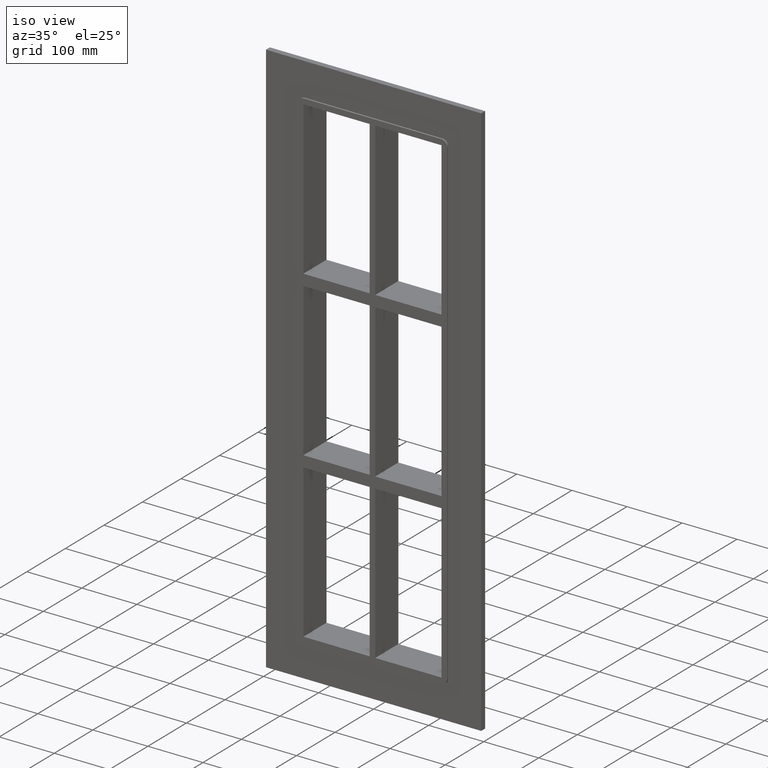
[diagram: clean part render]
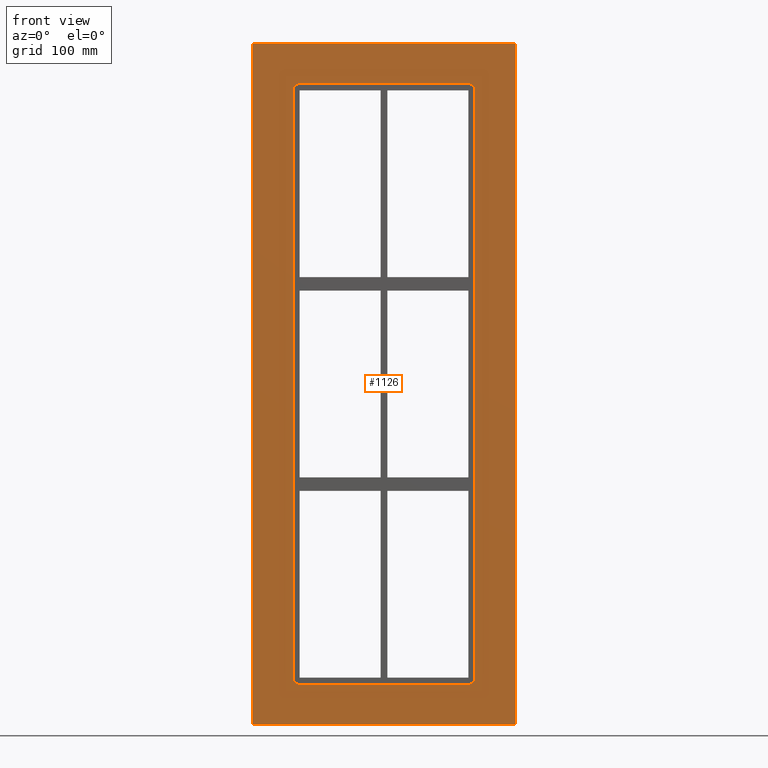
[diagram: tour spotlight — one face highlighted and labeled with its STEP entity id]
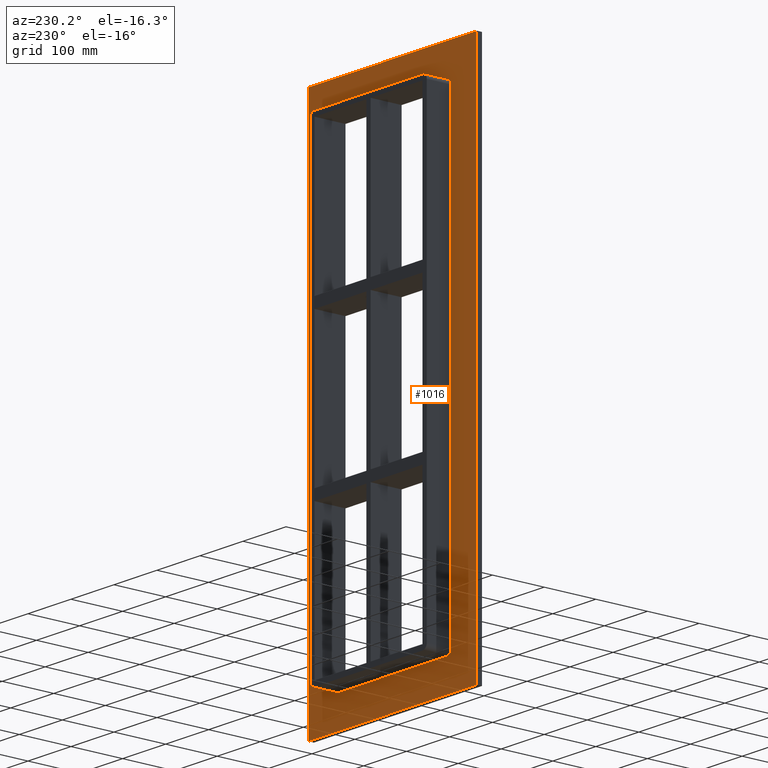
[diagram: tour spotlight — one face highlighted and labeled with its STEP entity id]
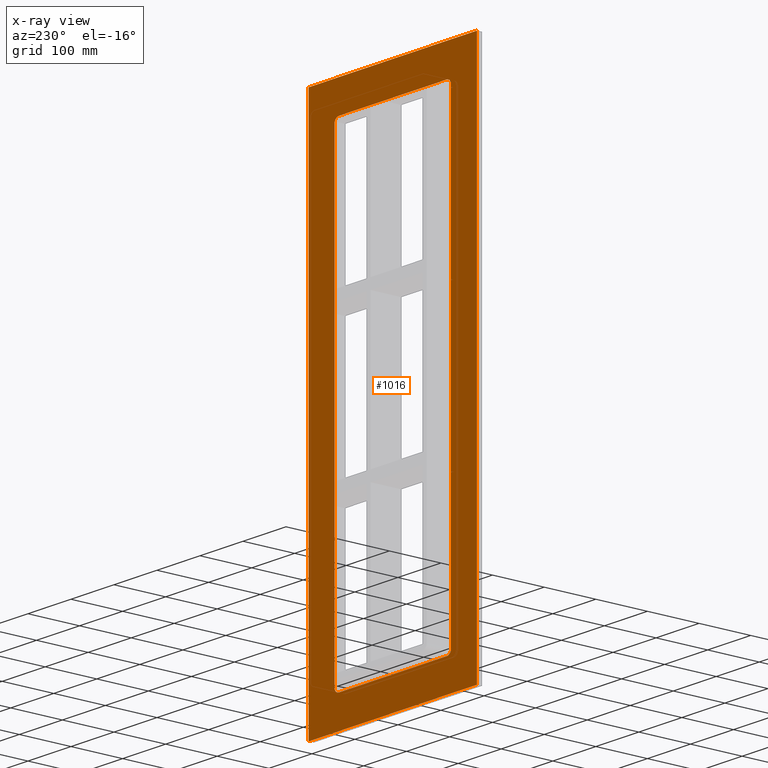
[diagram: x-ray of the same camera — body ghosted, this tour face saturated]
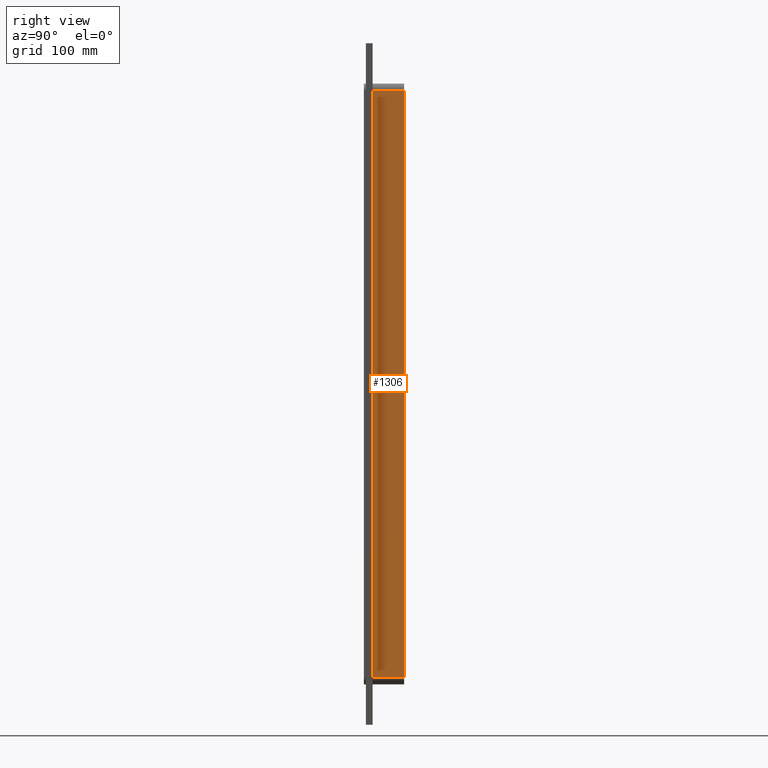
[diagram: tour spotlight — one face highlighted and labeled with its STEP entity id]
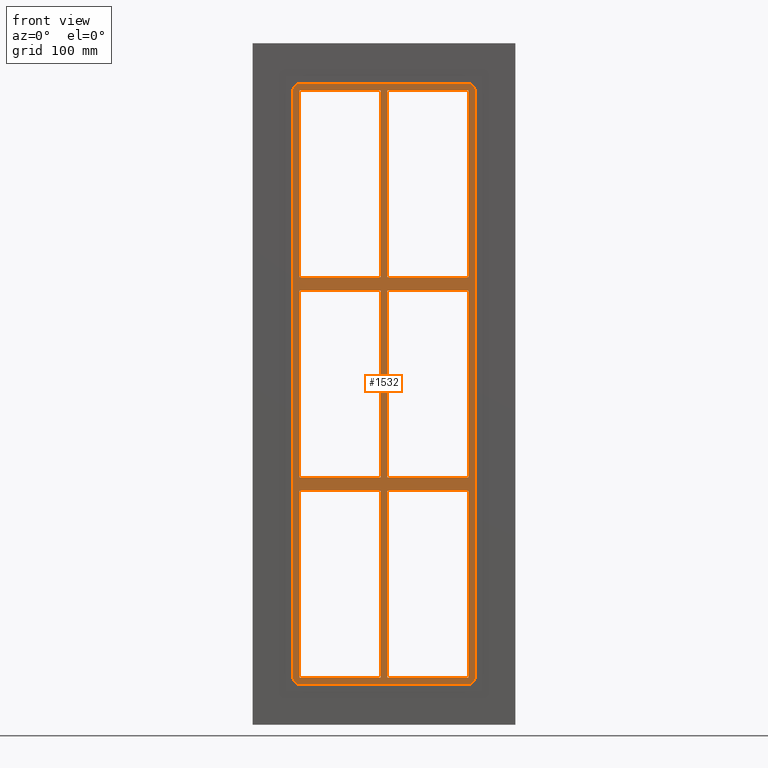
[diagram: tour spotlight — one face highlighted and labeled with its STEP entity id]
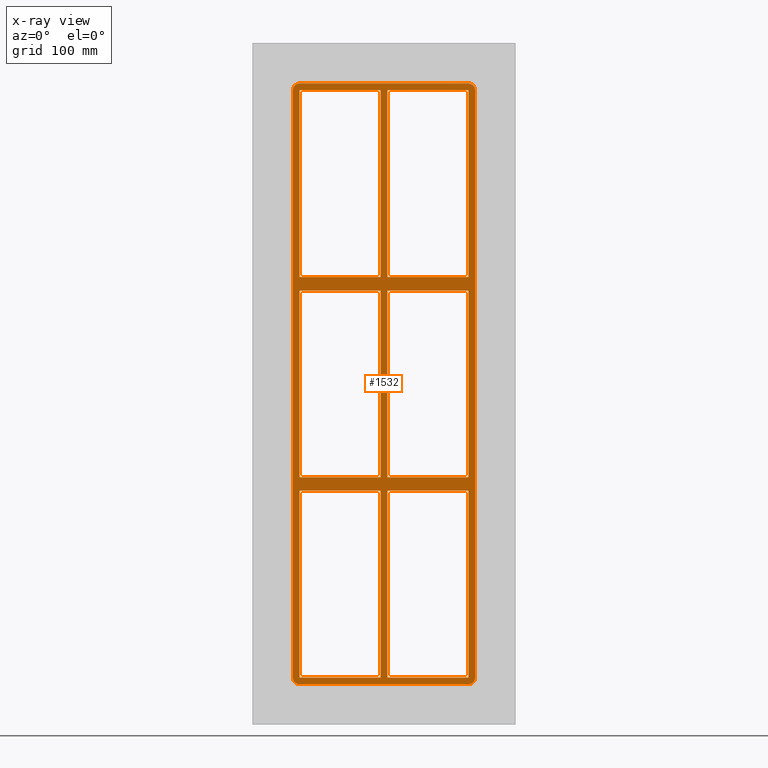
[diagram: x-ray of the same camera — body ghosted, this tour face saturated]
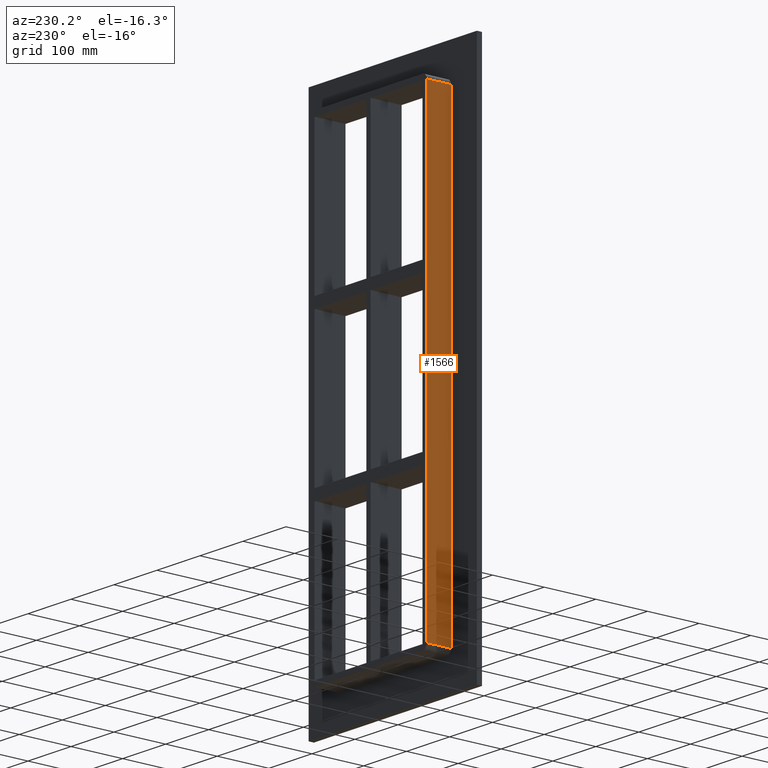
[diagram: tour spotlight — one face highlighted and labeled with its STEP entity id]
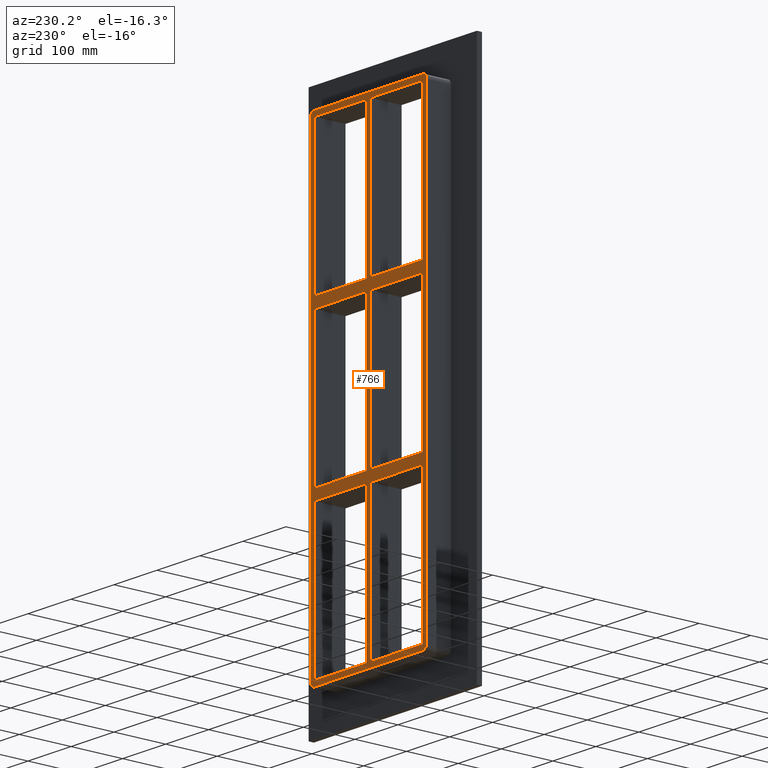
[diagram: tour spotlight — one face highlighted and labeled with its STEP entity id]
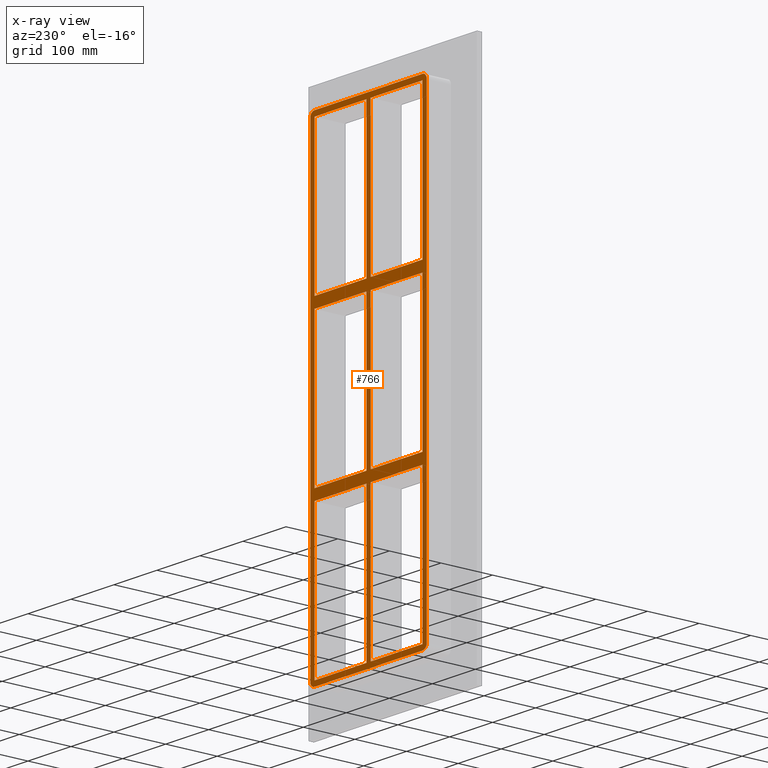
[diagram: x-ray of the same camera — body ghosted, this tour face saturated]
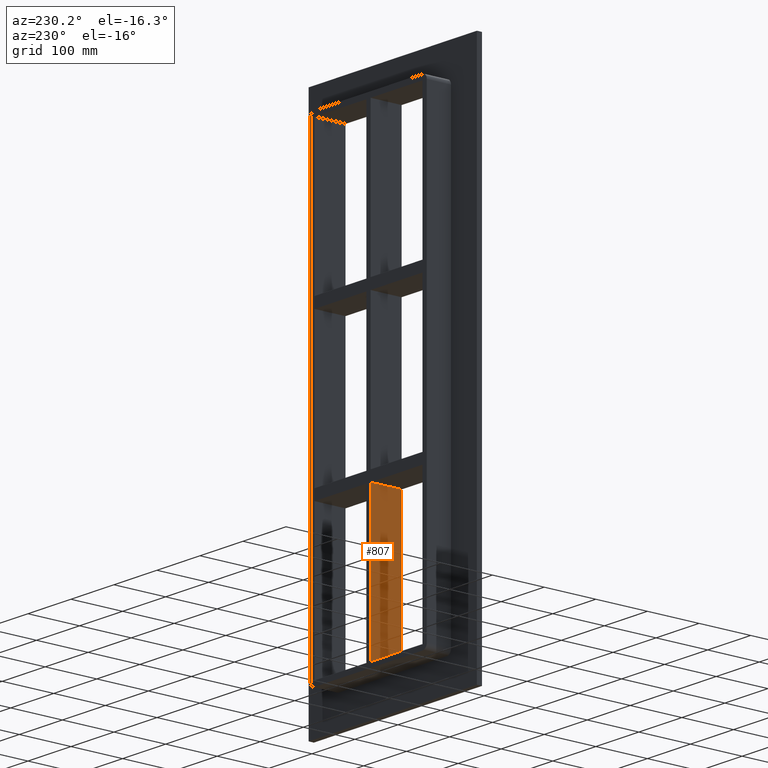
[diagram: tour spotlight — one face highlighted and labeled with its STEP entity id]
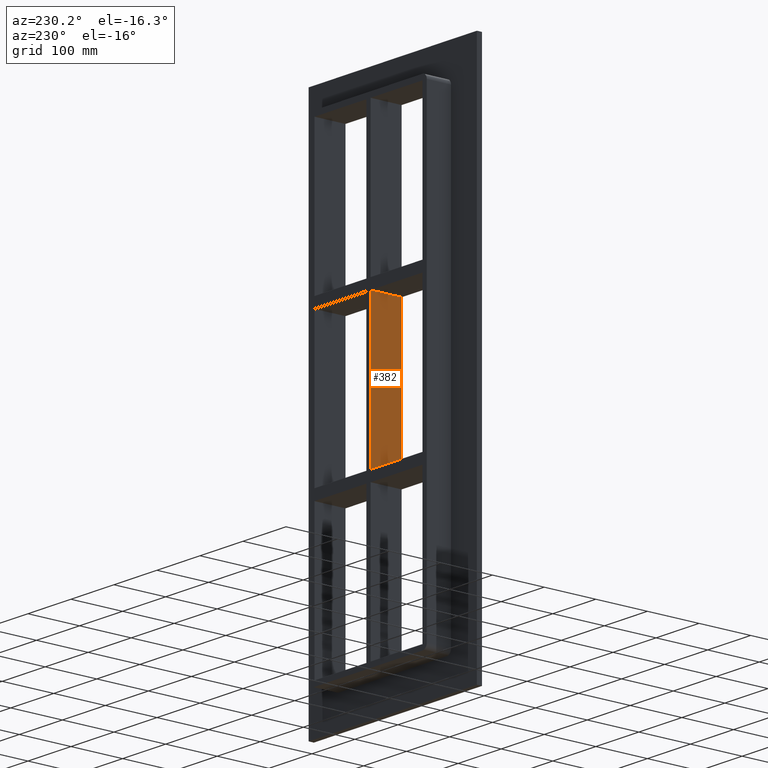
[diagram: tour spotlight — one face highlighted and labeled with its STEP entity id]
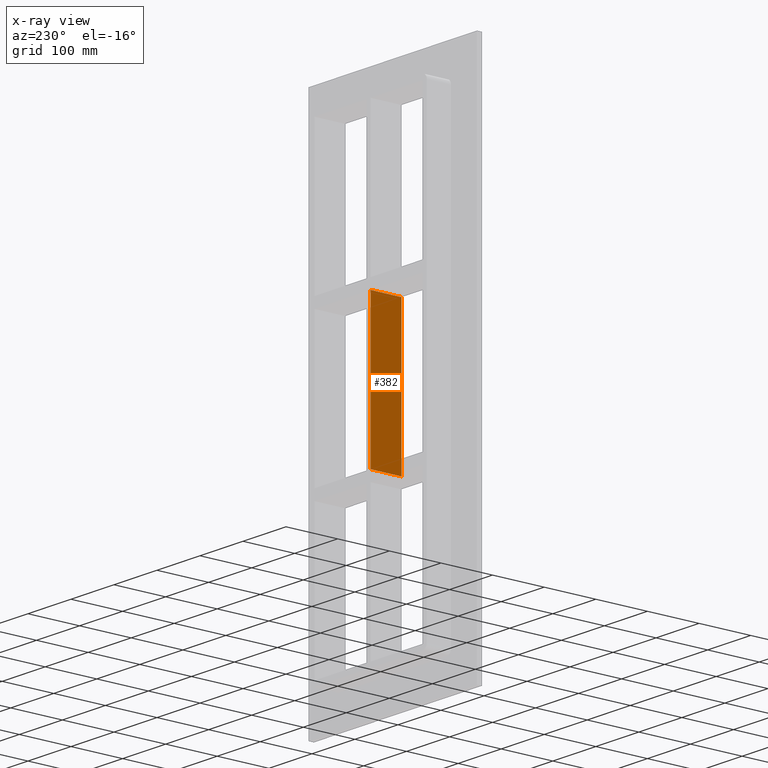
[diagram: x-ray of the same camera — body ghosted, this tour face saturated]
A machine part: a face-by-face anatomy tour. The part has 48 B-rep faces; the first image is the clean iso view, then the 8 largest visible faces are spotlighted one at a time (largest first), each with its STEP entity span.

Face 1 — front view, entity #1126. In plain terms, the highlighted planar face has unit normal (0, 1, 0).
Definition (entity closure, byte-faithful):
#1017=CARTESIAN_POINT('',(1.213738E-014,0.0,0.0));
#1018=DIRECTION('',(0.0,1.0,0.0));
#1019=DIRECTION('',(0.0,0.0,1.0));
#1020=AXIS2_PLACEMENT_3D('',#1017,#1018,#1019);
#1021=PLANE('',#1020);
#1022=CARTESIAN_POINT('',(-195.49999999999997,0.0,507.0));
#1023=VERTEX_POINT('',#1022);
#1024=CARTESIAN_POINT('',(195.5,0.0,507.0));
#1025=VERTEX_POINT('',#1024);
#1026=CARTESIAN_POINT('',(-195.49999999999997,0.0,507.0));
#1027=DIRECTION('',(1.0,0.0,0.0));
#1028=VECTOR('',#1027,390.99999999999994);
#1029=LINE('',#1026,#1028);
#1030=EDGE_CURVE('',#1023,#1025,#1029,.T.);
#1031=ORIENTED_EDGE('',*,*,#1030,.F.);
#1032=CARTESIAN_POINT('',(-195.49999999999997,0.0,-507.0));
#1033=VERTEX_POINT('',#1032);
#1034=CARTESIAN_POINT('',(-195.49999999999997,0.0,-507.0));
#1035=DIRECTION('',(0.0,0.0,1.0));
#1036=VECTOR('',#1035,1014.0);
#1037=LINE('',#1034,#1036);
#1038=EDGE_CURVE('',#1033,#1023,#1037,.T.);
#1039=ORIENTED_EDGE('',*,*,#1038,.F.);
#1040=CARTESIAN_POINT('',(195.5,0.0,-507.0));
#1041=VERTEX_POINT('',#1040);
#1042=CARTESIAN_POINT('',(195.5,0.0,-507.0));
#1043=DIRECTION('',(-1.0,0.0,0.0));
#1044=VECTOR('',#1043,390.99999999999994);
#1045=LINE('',#1042,#1044);
#1046=EDGE_CURVE('',#1041,#1033,#1045,.T.);
#1047=ORIENTED_EDGE('',*,*,#1046,.F.);
#1048=CARTESIAN_POINT('',(195.5,0.0,507.0));
#1049=DIRECTION('',(0.0,0.0,-1.0));
#1050=VECTOR('',#1049,1014.0);
#1051=LINE('',#1048,#1050);
#1052=EDGE_CURVE('',#1025,#1041,#1051,.T.);
#1053=ORIENTED_EDGE('',*,*,#1052,.F.);
#1054=EDGE_LOOP('',(#1031,#1039,#1047,#1053));
#1055=FACE_OUTER_BOUND('',#1054,.T.);
#1056=CARTESIAN_POINT('',(-135.5,0.0,-437.0));
#1057=VERTEX_POINT('',#1056);
#1058=CARTESIAN_POINT('',(-125.5,0.0,-447.0));
#1059=VERTEX_POINT('',#1058);
#1060=CARTESIAN_POINT('',(-125.5,0.0,-437.0));
#1061=DIRECTION('',(0.0,-1.0,0.0));
#1062=DIRECTION('',(-0.707106781186547,0.0,-0.707106781186547));
#1063=AXIS2_PLACEMENT_3D('',#1060,#1061,#1062);
#1064=CIRCLE('',#1063,9.999999999999998);
#1065=EDGE_CURVE('',#1057,#1059,#1064,.T.);
#1066=ORIENTED_EDGE('',*,*,#1065,.F.);
#1067=CARTESIAN_POINT('',(-135.5,0.0,437.0));
#1068=VERTEX_POINT('',#1067);
#1069=CARTESIAN_POINT('',(-135.5,0.0,437.00000000000011));
#1070=DIRECTION('',(0.0,0.0,-1.0));
#1071=VECTOR('',#1070,874.00000000000011);
#1072=LINE('',#1069,#1071);
#1073=EDGE_CURVE('',#1068,#1057,#1072,.T.);
#1074=ORIENTED_EDGE('',*,*,#1073,.F.);
#1075=CARTESIAN_POINT('',(-125.5,0.0,447.0));
#1076=VERTEX_POINT('',#1075);
#1077=CARTESIAN_POINT('',(-125.5,0.0,437.0));
#1078=DIRECTION('',(0.0,-1.0,0.0));
#1079=DIRECTION('',(-0.707106781186547,0.0,0.707106781186547));
#1080=AXIS2_PLACEMENT_3D('',#1077,#1078,#1079);
#1081=CIRCLE('',#1080,9.999999999999998);
#1082=EDGE_CURVE('',#1076,#1068,#1081,.T.);
#1083=ORIENTED_EDGE('',*,*,#1082,.F.);
#1084=CARTESIAN_POINT('',(125.5,0.0,447.0));
#1085=VERTEX_POINT('',#1084);
#1086=CARTESIAN_POINT('',(125.5,0.0,447.0));
#1087=DIRECTION('',(-1.0,0.0,0.0));
#1088=VECTOR('',#1087,251.0);
#1089=LINE('',#1086,#1088);
#1090=EDGE_CURVE('',#1085,#1076,#1089,.T.);
#1091=ORIENTED_EDGE('',*,*,#1090,.F.);
#1092=CARTESIAN_POINT('',(135.5,0.0,437.0));
#1093=VERTEX_POINT('',#1092);
#1094=CARTESIAN_POINT('',(125.5,0.0,437.0));
#1095=DIRECTION('',(0.0,-1.0,0.0));
#1096=DIRECTION('',(0.707106781186547,0.0,0.707106781186547));
#1097=AXIS2_PLACEMENT_3D('',#1094,#1095,#1096);
#1098=CIRCLE('',#1097,9.999999999999998);
#1099=EDGE_CURVE('',#1093,#1085,#1098,.T.);
#1100=ORIENTED_EDGE('',*,*,#1099,.F.);
#1101=CARTESIAN_POINT('',(135.5,0.0,-437.0));
#1102=VERTEX_POINT('',#1101);
#1103=CARTESIAN_POINT('',(135.5,0.0,-437.00000000000011));
#1104=DIRECTION('',(0.0,0.0,1.0));
#1105=VECTOR('',#1104,874.00000000000011);
#1106=LINE('',#1103,#1105);
#1107=EDGE_CURVE('',#1102,#1093,#1106,.T.);
#1108=ORIENTED_EDGE('',*,*,#1107,.F.);
#1109=CARTESIAN_POINT('',(125.5,0.0,-447.0));
#1110=VERTEX_POINT('',#1109);
#1111=CARTESIAN_POINT('',(125.5,0.0,-437.0));
#1112=DIRECTION('',(0.0,-1.0,0.0));
#1113=DIRECTION('',(0.707106781186547,0.0,-0.707106781186547));
#1114=AXIS2_PLACEMENT_3D('',#1111,#1112,#1113);
#1115=CIRCLE('',#1114,9.999999999999998);
#1116=EDGE_CURVE('',#1110,#1102,#1115,.T.);
#1117=ORIENTED_EDGE('',*,*,#1116,.F.);
#1118=CARTESIAN_POINT('',(-125.50000000000001,0.0,-447.0));
#1119=DIRECTION('',(1.0,0.0,0.0));
#1120=VECTOR('',#1119,251.0);
#1121=LINE('',#1118,#1120);
#1122=EDGE_CURVE('',#1059,#1110,#1121,.T.);
#1123=ORIENTED_EDGE('',*,*,#1122,.F.);
#1124=EDGE_LOOP('',(#1066,#1074,#1083,#1091,#1100,#1108,#1117,#1123));
#1125=FACE_BOUND('',#1124,.T.);
#1126=ADVANCED_FACE('',(#1055,#1125),#1021,.F.);

Face 2 — auxiliary view, entity #1016. An x-ray twin of the same camera follows (body ghosted, this face saturated) — the face is partly hidden behind the body. In plain terms, the highlighted planar face has unit normal (0, 1, 0).
Definition (entity closure, byte-faithful):
#907=CARTESIAN_POINT('',(1.213738E-014,10.0,0.0));
#908=DIRECTION('',(0.0,1.0,0.0));
#909=DIRECTION('',(0.0,0.0,1.0));
#910=AXIS2_PLACEMENT_3D('',#907,#908,#909);
#911=PLANE('',#910);
#912=CARTESIAN_POINT('',(-195.49999999999997,10.0,507.0));
#913=VERTEX_POINT('',#912);
#914=CARTESIAN_POINT('',(195.49999999999997,10.0,507.0));
#915=VERTEX_POINT('',#914);
#916=CARTESIAN_POINT('',(-195.49999999999997,10.0,507.0));
#917=DIRECTION('',(1.0,0.0,0.0));
#918=VECTOR('',#917,390.99999999999994);
#919=LINE('',#916,#918);
#920=EDGE_CURVE('',#913,#915,#919,.T.);
#921=ORIENTED_EDGE('',*,*,#920,.T.);
#922=CARTESIAN_POINT('',(195.49999999999997,10.0,-507.0));
#923=VERTEX_POINT('',#922);
#924=CARTESIAN_POINT('',(195.5,10.0,507.0));
#925=DIRECTION('',(0.0,0.0,-1.0));
#926=VECTOR('',#925,1014.0);
#927=LINE('',#924,#926);
#928=EDGE_CURVE('',#915,#923,#927,.T.);
#929=ORIENTED_EDGE('',*,*,#928,.T.);
#930=CARTESIAN_POINT('',(-195.49999999999997,10.0,-507.0));
#931=VERTEX_POINT('',#930);
#932=CARTESIAN_POINT('',(195.5,10.0,-507.0));
#933=DIRECTION('',(-1.0,0.0,0.0));
#934=VECTOR('',#933,390.99999999999994);
#935=LINE('',#932,#934);
#936=EDGE_CURVE('',#923,#931,#935,.T.);
#937=ORIENTED_EDGE('',*,*,#936,.T.);
#938=CARTESIAN_POINT('',(-195.49999999999997,10.0,-507.0));
#939=DIRECTION('',(0.0,0.0,1.0));
#940=VECTOR('',#939,1014.0);
#941=LINE('',#938,#940);
#942=EDGE_CURVE('',#931,#913,#941,.T.);
#943=ORIENTED_EDGE('',*,*,#942,.T.);
#944=EDGE_LOOP('',(#921,#929,#937,#943));
#945=FACE_OUTER_BOUND('',#944,.T.);
#946=CARTESIAN_POINT('',(-125.5,10.0,-447.0));
#947=VERTEX_POINT('',#946);
#948=CARTESIAN_POINT('',(-135.5,10.0,-437.0));
#949=VERTEX_POINT('',#948);
#950=CARTESIAN_POINT('',(-125.5,10.0,-437.0));
#951=DIRECTION('',(0.0,1.0,0.0));
#952=DIRECTION('',(-0.707106781186547,0.0,-0.707106781186547));
#953=AXIS2_PLACEMENT_3D('',#950,#951,#952);
#954=CIRCLE('',#953,9.999999999999998);
#955=EDGE_CURVE('',#947,#949,#954,.T.);
#956=ORIENTED_EDGE('',*,*,#955,.F.);
#957=CARTESIAN_POINT('',(125.5,10.0,-447.0));
#958=VERTEX_POINT('',#957);
#959=CARTESIAN_POINT('',(125.5,10.0,-447.0));
#960=DIRECTION('',(-1.0,0.0,0.0));
#961=VECTOR('',#960,251.0);
#962=LINE('',#959,#961);
#963=EDGE_CURVE('',#958,#947,#962,.T.);
#964=ORIENTED_EDGE('',*,*,#963,.F.);
#965=CARTESIAN_POINT('',(135.5,10.0,-437.0));
#966=VERTEX_POINT('',#965);
#967=CARTESIAN_POINT('',(125.5,10.0,-437.0));
#968=DIRECTION('',(0.0,1.0,0.0));
#969=DIRECTION('',(0.707106781186547,0.0,-0.707106781186547));
#970=AXIS2_PLACEMENT_3D('',#967,#968,#969);
#971=CIRCLE('',#970,9.999999999999998);
#972=EDGE_CURVE('',#966,#958,#971,.T.);
#973=ORIENTED_EDGE('',*,*,#972,.F.);
#974=CARTESIAN_POINT('',(135.5,10.0,437.0));
#975=VERTEX_POINT('',#974);
#976=CARTESIAN_POINT('',(135.5,10.0,437.0));
#977=DIRECTION('',(0.0,0.0,-1.0));
#978=VECTOR('',#977,874.00000000000011);
#979=LINE('',#976,#978);
#980=EDGE_CURVE('',#975,#966,#979,.T.);
#981=ORIENTED_EDGE('',*,*,#980,.F.);
#982=CARTESIAN_POINT('',(125.5,10.0,447.0));
#983=VERTEX_POINT('',#982);
#984=CARTESIAN_POINT('',(125.5,10.0,437.0));
#985=DIRECTION('',(0.0,1.0,0.0));
#986=DIRECTION('',(0.707106781186547,0.0,0.707106781186547));
#987=AXIS2_PLACEMENT_3D('',#984,#985,#986);
#988=CIRCLE('',#987,9.999999999999998);
#989=EDGE_CURVE('',#983,#975,#988,.T.);
#990=ORIENTED_EDGE('',*,*,#989,.F.);
#991=CARTESIAN_POINT('',(-125.5,10.0,447.0));
#992=VERTEX_POINT('',#991);
#993=CARTESIAN_POINT('',(-125.50000000000001,10.0,447.0));
#994=DIRECTION('',(1.0,0.0,0.0));
#995=VECTOR('',#994,251.0);
#996=LINE('',#993,#995);
#997=EDGE_CURVE('',#992,#983,#996,.T.);
#998=ORIENTED_EDGE('',*,*,#997,.F.);
#999=CARTESIAN_POINT('',(-135.5,10.0,437.0));
#1000=VERTEX_POINT('',#999);
#1001=CARTESIAN_POINT('',(-125.5,10.0,437.0));
#1002=DIRECTION('',(0.0,1.0,0.0));
#1003=DIRECTION('',(-0.707106781186547,0.0,0.707106781186547));
#1004=AXIS2_PLACEMENT_3D('',#1001,#1002,#1003);
#1005=CIRCLE('',#1004,9.999999999999998);
#1006=EDGE_CURVE('',#1000,#992,#1005,.T.);
#1007=ORIENTED_EDGE('',*,*,#1006,.F.);
#1008=CARTESIAN_POINT('',(-135.5,10.0,-437.0));
#1009=DIRECTION('',(0.0,0.0,1.0));
#1010=VECTOR('',#1009,874.00000000000011);
#1011=LINE('',#1008,#1010);
#1012=EDGE_CURVE('',#949,#1000,#1011,.T.);
#1013=ORIENTED_EDGE('',*,*,#1012,.F.);
#1014=EDGE_LOOP('',(#956,#964,#973,#981,#990,#998,#1007,#1013));
#1015=FACE_BOUND('',#1014,.T.);
#1016=ADVANCED_FACE('',(#945,#1015),#911,.T.);

Face 3 — right view, entity #1306. In plain terms, the highlighted planar face has unit normal (1, 0, 0).
Definition (entity closure, byte-faithful):
#616=CARTESIAN_POINT('',(135.5,57.0,-437.0));
#617=VERTEX_POINT('',#616);
#667=CARTESIAN_POINT('',(135.5,57.0,437.0));
#668=VERTEX_POINT('',#667);
#676=CARTESIAN_POINT('',(135.5,57.0,437.0));
#677=DIRECTION('',(0.0,0.0,-1.0));
#678=VECTOR('',#677,874.0);
#679=LINE('',#676,#678);
#680=EDGE_CURVE('',#668,#617,#679,.T.);
#965=CARTESIAN_POINT('',(135.5,10.0,-437.0));
#966=VERTEX_POINT('',#965);
#974=CARTESIAN_POINT('',(135.5,10.0,437.0));
#975=VERTEX_POINT('',#974);
#976=CARTESIAN_POINT('',(135.5,10.0,437.0));
#977=DIRECTION('',(0.0,0.0,-1.0));
#978=VECTOR('',#977,874.00000000000011);
#979=LINE('',#976,#978);
#980=EDGE_CURVE('',#975,#966,#979,.T.);
#1250=CARTESIAN_POINT('',(135.5,10.0,437.0));
#1251=DIRECTION('',(0.0,1.0,0.0));
#1252=VECTOR('',#1251,47.0);
#1253=LINE('',#1250,#1252);
#1254=EDGE_CURVE('',#975,#668,#1253,.T.);
#1290=CARTESIAN_POINT('',(135.5,0.0,447.0));
#1291=DIRECTION('',(1.0,0.0,0.0));
#1292=DIRECTION('',(0.0,0.0,-1.0));
#1293=AXIS2_PLACEMENT_3D('',#1290,#1291,#1292);
#1294=PLANE('',#1293);
#1295=ORIENTED_EDGE('',*,*,#980,.T.);
#1296=CARTESIAN_POINT('',(135.5,57.0,-437.0));
#1297=DIRECTION('',(0.0,-1.0,0.0));
#1298=VECTOR('',#1297,47.0);
#1299=LINE('',#1296,#1298);
#1300=EDGE_CURVE('',#617,#966,#1299,.T.);
#1301=ORIENTED_EDGE('',*,*,#1300,.F.);
#1302=ORIENTED_EDGE('',*,*,#680,.F.);
#1303=ORIENTED_EDGE('',*,*,#1254,.F.);
#1304=EDGE_LOOP('',(#1295,#1301,#1302,#1303));
#1305=FACE_OUTER_BOUND('',#1304,.T.);
#1306=ADVANCED_FACE('',(#1305),#1294,.T.);

Face 4 — front view, entity #1532. An x-ray twin of the same camera follows (body ghosted, this face saturated) — the face is partly hidden behind the body. In plain terms, the highlighted planar face has unit normal (0, 1, 0).
Definition (entity closure, byte-faithful):
#75=CARTESIAN_POINT('',(5.0,-3.0,138.99999999999062));
#76=VERTEX_POINT('',#75);
#91=CARTESIAN_POINT('',(125.50000000000182,-3.0,138.99999999999065));
#92=VERTEX_POINT('',#91);
#99=CARTESIAN_POINT('',(125.50000000000182,-3.0,138.99999999999065));
#100=DIRECTION('',(-1.0,0.0,0.0));
#101=VECTOR('',#100,120.50000000000182);
#102=LINE('',#99,#101);
#103=EDGE_CURVE('',#92,#76,#102,.T.);
#113=CARTESIAN_POINT('',(5.0,-3.0,158.99999999999994));
#114=VERTEX_POINT('',#113);
#123=CARTESIAN_POINT('',(125.49999999999991,-3.0,158.99999999999994));
#124=VERTEX_POINT('',#123);
#125=CARTESIAN_POINT('',(5.0,-3.0,158.99999999999994));
#126=DIRECTION('',(1.0,0.0,0.0));
#127=VECTOR('',#126,120.49999999999991);
#128=LINE('',#125,#127);
#129=EDGE_CURVE('',#114,#124,#128,.T.);
#155=CARTESIAN_POINT('',(-5.00000000000135,-3.0,158.99999999999994));
#156=VERTEX_POINT('',#155);
#171=CARTESIAN_POINT('',(-125.49999999999969,-3.0,158.99999999999994));
#172=VERTEX_POINT('',#171);
#179=CARTESIAN_POINT('',(-125.49999999999969,-3.0,158.99999999999994));
#180=DIRECTION('',(1.0,0.0,0.0));
#181=VECTOR('',#180,120.49999999999834);
#182=LINE('',#179,#181);
#183=EDGE_CURVE('',#172,#156,#182,.T.);
#193=CARTESIAN_POINT('',(-5.00000000000135,-3.0,138.99999999999062));
#194=VERTEX_POINT('',#193);
#203=CARTESIAN_POINT('',(-125.49999999999967,-3.0,138.99999999999056));
#204=VERTEX_POINT('',#203);
#205=CARTESIAN_POINT('',(-5.000000000001364,-3.0,138.99999999999062));
#206=DIRECTION('',(-1.0,0.0,0.0));
#207=VECTOR('',#206,120.49999999999832);
#208=LINE('',#205,#207);
#209=EDGE_CURVE('',#194,#204,#208,.T.);
#234=CARTESIAN_POINT('',(-125.49999999999969,-3.0,-139.00000000000006));
#235=VERTEX_POINT('',#234);
#236=CARTESIAN_POINT('',(-125.5,-3.0,-139.00000000000006));
#237=DIRECTION('',(0.0,0.0,1.0));
#238=VECTOR('',#237,277.99999999999068);
#239=LINE('',#236,#238);
#240=EDGE_CURVE('',#235,#204,#239,.T.);
#273=CARTESIAN_POINT('',(125.49999999999991,-3.0,-139.00000000000006));
#274=VERTEX_POINT('',#273);
#281=CARTESIAN_POINT('',(125.5,-3.0,138.99999999999062));
#282=DIRECTION('',(0.0,0.0,-1.0));
#283=VECTOR('',#282,277.99999999999068);
#284=LINE('',#281,#283);
#285=EDGE_CURVE('',#92,#274,#284,.T.);
#296=CARTESIAN_POINT('',(125.5,-3.0,437.0));
#297=VERTEX_POINT('',#296);
#298=CARTESIAN_POINT('',(125.5,-3.0,437.0));
#299=DIRECTION('',(0.0,0.0,-1.0));
#300=VECTOR('',#299,278.00000000000006);
#301=LINE('',#298,#300);
#302=EDGE_CURVE('',#297,#124,#301,.T.);
#327=CARTESIAN_POINT('',(-5.000000000001403,-3.0,437.0));
#328=VERTEX_POINT('',#327);
#329=CARTESIAN_POINT('',(-5.000000000001353,-3.0,159.0));
#330=DIRECTION('',(0.0,0.0,1.0));
#331=VECTOR('',#330,278.0);
#332=LINE('',#329,#331);
#333=EDGE_CURVE('',#156,#328,#332,.T.);
#366=CARTESIAN_POINT('',(-5.000000000001297,-3.0,-139.00000000000006));
#367=VERTEX_POINT('',#366);
#374=CARTESIAN_POINT('',(-5.000000000001298,-3.0,-139.0));
#375=DIRECTION('',(0.0,0.0,1.0));
#376=VECTOR('',#375,277.99999999999068);
#377=LINE('',#374,#376);
#378=EDGE_CURVE('',#367,#194,#377,.T.);
#397=CARTESIAN_POINT('',(5.0,-3.0,437.0));
#398=VERTEX_POINT('',#397);
#405=CARTESIAN_POINT('',(5.0,-3.0,437.0));
#406=DIRECTION('',(0.0,0.0,-1.0));
#407=VECTOR('',#406,278.00000000000006);
#408=LINE('',#405,#407);
#409=EDGE_CURVE('',#398,#114,#408,.T.);
#421=CARTESIAN_POINT('',(5.0,-3.0,-159.00000000000941));
#422=VERTEX_POINT('',#421);
#437=CARTESIAN_POINT('',(125.50000000000182,-3.0,-159.00000000000938));
#438=VERTEX_POINT('',#437);
#445=CARTESIAN_POINT('',(125.50000000000182,-3.0,-159.00000000000938));
#446=DIRECTION('',(-1.0,0.0,0.0));
#447=VECTOR('',#446,120.50000000000182);
#448=LINE('',#445,#447);
#449=EDGE_CURVE('',#438,#422,#448,.T.);
#459=CARTESIAN_POINT('',(-5.000000000001297,-3.0,-159.00000000000941));
#460=VERTEX_POINT('',#459);
#469=CARTESIAN_POINT('',(-125.49999999999967,-3.0,-159.00000000000944));
#470=VERTEX_POINT('',#469);
#471=CARTESIAN_POINT('',(-5.000000000001307,-3.0,-159.00000000000941));
#472=DIRECTION('',(-1.0,0.0,0.0));
#473=VECTOR('',#472,120.49999999999838);
#474=LINE('',#471,#473);
#475=EDGE_CURVE('',#460,#470,#474,.T.);
#499=CARTESIAN_POINT('',(5.0,-3.0,-139.00000000000006));
#500=VERTEX_POINT('',#499);
#509=CARTESIAN_POINT('',(5.0,-3.0,-139.00000000000006));
#510=DIRECTION('',(1.0,0.0,0.0));
#511=VECTOR('',#510,120.49999999999991);
#512=LINE('',#509,#511);
#513=EDGE_CURVE('',#500,#274,#512,.T.);
#538=CARTESIAN_POINT('',(-125.49999999999969,-3.0,-139.00000000000006));
#539=DIRECTION('',(1.0,0.0,0.0));
#540=VECTOR('',#539,120.49999999999839);
#541=LINE('',#538,#540);
#542=EDGE_CURVE('',#235,#367,#541,.T.);
#561=CARTESIAN_POINT('',(-125.5,-3.0,437.0));
#562=VERTEX_POINT('',#561);
#569=CARTESIAN_POINT('',(-125.5,-3.0,159.0));
#570=DIRECTION('',(0.0,0.0,1.0));
#571=VECTOR('',#570,278.00000000000011);
#572=LINE('',#569,#571);
#573=EDGE_CURVE('',#172,#562,#572,.T.);
#592=CARTESIAN_POINT('',(125.5,-3.0,-437.0));
#593=VERTEX_POINT('',#592);
#600=CARTESIAN_POINT('',(125.5,-3.0,-159.00000000000938));
#601=DIRECTION('',(0.0,0.0,-1.0));
#602=VECTOR('',#601,277.99999999999073);
#603=LINE('',#600,#602);
#604=EDGE_CURVE('',#438,#593,#603,.T.);
#773=CARTESIAN_POINT('',(5.0,-3.0,138.99999999999056));
#774=DIRECTION('',(0.0,0.0,-1.0));
#775=VECTOR('',#774,277.99999999999068);
#776=LINE('',#773,#775);
#777=EDGE_CURVE('',#76,#500,#776,.T.);
#791=CARTESIAN_POINT('',(-5.000000000001243,-3.0,-437.0));
#792=VERTEX_POINT('',#791);
#799=CARTESIAN_POINT('',(-5.000000000001243,-3.0,-437.0));
#800=DIRECTION('',(0.0,0.0,1.0));
#801=VECTOR('',#800,277.99999999999062);
#802=LINE('',#799,#801);
#803=EDGE_CURVE('',#792,#460,#802,.T.);
#814=CARTESIAN_POINT('',(5.0,-3.0,-436.99999999998403));
#815=VERTEX_POINT('',#814);
#816=CARTESIAN_POINT('',(5.0,-3.0,-159.00000000000944));
#817=DIRECTION('',(0.0,0.0,-1.0));
#818=VECTOR('',#817,277.99999999997465);
#819=LINE('',#816,#818);
#820=EDGE_CURVE('',#422,#815,#819,.T.);
#839=CARTESIAN_POINT('',(-125.5,-3.0,-437.0));
#840=VERTEX_POINT('',#839);
#847=CARTESIAN_POINT('',(-5.000000000001251,-3.0,-437.0));
#848=DIRECTION('',(-1.0,0.0,0.0));
#849=VECTOR('',#848,120.49999999999878);
#850=LINE('',#847,#849);
#851=EDGE_CURVE('',#792,#840,#850,.T.);
#862=CARTESIAN_POINT('',(125.5,-3.0,-437.0));
#863=DIRECTION('',(-1.0,0.0,0.0));
#864=VECTOR('',#863,120.5);
#865=LINE('',#862,#864);
#866=EDGE_CURVE('',#593,#815,#865,.T.);
#881=CARTESIAN_POINT('',(5.0,-3.0,437.0));
#882=DIRECTION('',(1.0,0.0,0.0));
#883=VECTOR('',#882,120.50000000000003);
#884=LINE('',#881,#883);
#885=EDGE_CURVE('',#398,#297,#884,.T.);
#896=CARTESIAN_POINT('',(-125.5,-3.0,437.0));
#897=DIRECTION('',(1.0,0.0,0.0));
#898=VECTOR('',#897,120.49999999999861);
#899=LINE('',#896,#898);
#900=EDGE_CURVE('',#562,#328,#899,.T.);
#1201=CARTESIAN_POINT('',(-125.5,-3.0,-437.0));
#1202=DIRECTION('',(0.0,0.0,1.0));
#1203=VECTOR('',#1202,277.99999999999056);
#1204=LINE('',#1201,#1203);
#1205=EDGE_CURVE('',#840,#470,#1204,.T.);
#1218=CARTESIAN_POINT('',(125.5,-3.0,447.0));
#1219=VERTEX_POINT('',#1218);
#1226=CARTESIAN_POINT('',(135.5,-3.0,437.0));
#1227=VERTEX_POINT('',#1226);
#1228=CARTESIAN_POINT('',(125.5,-3.0,437.0));
#1229=DIRECTION('',(0.0,1.0,0.0));
#1230=DIRECTION('',(0.707106781186547,0.0,0.707106781186547));
#1231=AXIS2_PLACEMENT_3D('',#1228,#1229,#1230);
#1232=CIRCLE('',#1231,9.999999999999998);
#1233=EDGE_CURVE('',#1219,#1227,#1232,.T.);
#1273=CARTESIAN_POINT('',(135.5,-3.0,-437.0));
#1274=VERTEX_POINT('',#1273);
#1275=CARTESIAN_POINT('',(135.5,-3.0,-437.0));
#1276=DIRECTION('',(0.0,0.0,1.0));
#1277=VECTOR('',#1276,874.0);
#1278=LINE('',#1275,#1277);
#1279=EDGE_CURVE('',#1274,#1227,#1278,.T.);
#1313=CARTESIAN_POINT('',(-125.5,-3.0,447.0));
#1314=VERTEX_POINT('',#1313);
#1321=CARTESIAN_POINT('',(125.5,-3.0,447.0));
#1322=DIRECTION('',(-1.0,0.0,0.0));
#1323=VECTOR('',#1322,251.0);
#1324=LINE('',#1321,#1323);
#1325=EDGE_CURVE('',#1219,#1314,#1324,.T.);
#1338=CARTESIAN_POINT('',(125.5,-3.0,-447.0));
#1339=VERTEX_POINT('',#1338);
#1340=CARTESIAN_POINT('',(125.5,-3.0,-437.0));
#1341=DIRECTION('',(0.0,1.0,0.0));
#1342=DIRECTION('',(0.707106781186547,0.0,-0.707106781186547));
#1343=AXIS2_PLACEMENT_3D('',#1340,#1341,#1342);
#1344=CIRCLE('',#1343,9.999999999999998);
#1345=EDGE_CURVE('',#1274,#1339,#1344,.T.);
#1379=CARTESIAN_POINT('',(-135.5,-3.0,437.0));
#1380=VERTEX_POINT('',#1379);
#1387=CARTESIAN_POINT('',(-125.5,-3.0,437.0));
#1388=DIRECTION('',(0.0,1.0,0.0));
#1389=DIRECTION('',(-0.707106781186547,0.0,0.707106781186547));
#1390=AXIS2_PLACEMENT_3D('',#1387,#1388,#1389);
#1391=CIRCLE('',#1390,9.999999999999998);
#1392=EDGE_CURVE('',#1380,#1314,#1391,.T.);
#1405=CARTESIAN_POINT('',(-125.5,-3.0,-447.0));
#1406=VERTEX_POINT('',#1405);
#1407=CARTESIAN_POINT('',(-125.5,-3.0,-447.0));
#1408=DIRECTION('',(1.0,0.0,0.0));
#1409=VECTOR('',#1408,251.0);
#1410=LINE('',#1407,#1409);
#1411=EDGE_CURVE('',#1406,#1339,#1410,.T.);
#1445=CARTESIAN_POINT('',(-135.5,-3.0,-437.0));
#1446=VERTEX_POINT('',#1445);
#1453=CARTESIAN_POINT('',(-135.5,-3.0,437.0));
#1454=DIRECTION('',(0.0,0.0,-1.0));
#1455=VECTOR('',#1454,874.0);
#1456=LINE('',#1453,#1455);
#1457=EDGE_CURVE('',#1380,#1446,#1456,.T.);
#1470=CARTESIAN_POINT('',(-125.5,-3.0,-437.0));
#1471=DIRECTION('',(0.0,1.0,0.0));
#1472=DIRECTION('',(-0.707106781186547,0.0,-0.707106781186547));
#1473=AXIS2_PLACEMENT_3D('',#1470,#1471,#1472);
#1474=CIRCLE('',#1473,9.999999999999998);
#1475=EDGE_CURVE('',#1406,#1446,#1474,.T.);
#1481=CARTESIAN_POINT('',(0.0,-3.0,0.0));
#1482=DIRECTION('',(0.0,1.0,0.0));
#1483=DIRECTION('',(0.0,0.0,1.0));
#1484=AXIS2_PLACEMENT_3D('',#1481,#1482,#1483);
#1485=PLANE('',#1484);
#1486=ORIENTED_EDGE('',*,*,#1345,.F.);
#1487=ORIENTED_EDGE('',*,*,#1279,.T.);
#1488=ORIENTED_EDGE('',*,*,#1233,.F.);
#1489=ORIENTED_EDGE('',*,*,#1325,.T.);
#1490=ORIENTED_EDGE('',*,*,#1392,.F.);
#1491=ORIENTED_EDGE('',*,*,#1457,.T.);
#1492=ORIENTED_EDGE('',*,*,#1475,.F.);
#1493=ORIENTED_EDGE('',*,*,#1411,.T.);
#1494=EDGE_LOOP('',(#1486,#1487,#1488,#1489,#1490,#1491,#1492,#1493));
#1495=FACE_OUTER_BOUND('',#1494,.T.);
#1496=ORIENTED_EDGE('',*,*,#573,.T.);
#1497=ORIENTED_EDGE('',*,*,#900,.T.);
#1498=ORIENTED_EDGE('',*,*,#333,.F.);
#1499=ORIENTED_EDGE('',*,*,#183,.F.);
#1500=EDGE_LOOP('',(#1496,#1497,#1498,#1499));
#1501=FACE_BOUND('',#1500,.T.);
#1502=ORIENTED_EDGE('',*,*,#285,.T.);
#1503=ORIENTED_EDGE('',*,*,#513,.F.);
#1504=ORIENTED_EDGE('',*,*,#777,.F.);
#1505=ORIENTED_EDGE('',*,*,#103,.F.);
#1506=EDGE_LOOP('',(#1502,#1503,#1504,#1505));
#1507=FACE_BOUND('',#1506,.T.);
#1508=ORIENTED_EDGE('',*,*,#209,.F.);
#1509=ORIENTED_EDGE('',*,*,#378,.F.);
#1510=ORIENTED_EDGE('',*,*,#542,.F.);
#1511=ORIENTED_EDGE('',*,*,#240,.T.);
#1512=EDGE_LOOP('',(#1508,#1509,#1510,#1511));
#1513=FACE_BOUND('',#1512,.T.);
#1514=ORIENTED_EDGE('',*,*,#129,.F.);
#1515=ORIENTED_EDGE('',*,*,#409,.F.);
#1516=ORIENTED_EDGE('',*,*,#885,.T.);
#1517=ORIENTED_EDGE('',*,*,#302,.T.);
#1518=EDGE_LOOP('',(#1514,#1515,#1516,#1517));
#1519=FACE_BOUND('',#1518,.T.);
#1520=ORIENTED_EDGE('',*,*,#604,.T.);
#1521=ORIENTED_EDGE('',*,*,#866,.T.);
#1522=ORIENTED_EDGE('',*,*,#820,.F.);
#1523=ORIENTED_EDGE('',*,*,#449,.F.);
#1524=EDGE_LOOP('',(#1520,#1521,#1522,#1523));
#1525=FACE_BOUND('',#1524,.T.);
#1526=ORIENTED_EDGE('',*,*,#475,.F.);
#1527=ORIENTED_EDGE('',*,*,#803,.F.);
#1528=ORIENTED_EDGE('',*,*,#851,.T.);
#1529=ORIENTED_EDGE('',*,*,#1205,.T.);
#1530=EDGE_LOOP('',(#1526,#1527,#1528,#1529));
#1531=FACE_BOUND('',#1530,.T.);
#1532=ADVANCED_FACE('',(#1495,#1501,#1507,#1513,#1519,#1525,#1531),#1485,.F.);

Face 5 — auxiliary view, entity #1566. In plain terms, the highlighted planar face has unit normal (-1, 0, 0).
Definition (entity closure, byte-faithful):
#633=CARTESIAN_POINT('',(-135.5,57.0,-437.0));
#634=VERTEX_POINT('',#633);
#642=CARTESIAN_POINT('',(-135.5,57.0,437.0));
#643=VERTEX_POINT('',#642);
#644=CARTESIAN_POINT('',(-135.5,57.0,-437.0));
#645=DIRECTION('',(0.0,0.0,1.0));
#646=VECTOR('',#645,874.0);
#647=LINE('',#644,#646);
#648=EDGE_CURVE('',#634,#643,#647,.T.);
#948=CARTESIAN_POINT('',(-135.5,10.0,-437.0));
#949=VERTEX_POINT('',#948);
#999=CARTESIAN_POINT('',(-135.5,10.0,437.0));
#1000=VERTEX_POINT('',#999);
#1008=CARTESIAN_POINT('',(-135.5,10.0,-437.0));
#1009=DIRECTION('',(0.0,0.0,1.0));
#1010=VECTOR('',#1009,874.00000000000011);
#1011=LINE('',#1008,#1010);
#1012=EDGE_CURVE('',#949,#1000,#1011,.T.);
#1539=CARTESIAN_POINT('',(-135.5,10.0,-437.0));
#1540=DIRECTION('',(0.0,1.0,0.0));
#1541=VECTOR('',#1540,47.0);
#1542=LINE('',#1539,#1541);
#1543=EDGE_CURVE('',#949,#634,#1542,.T.);
#1550=CARTESIAN_POINT('',(-135.5,0.0,-447.0));
#1551=DIRECTION('',(-1.0,0.0,0.0));
#1552=DIRECTION('',(0.0,0.0,1.0));
#1553=AXIS2_PLACEMENT_3D('',#1550,#1551,#1552);
#1554=PLANE('',#1553);
#1555=ORIENTED_EDGE('',*,*,#1012,.T.);
#1556=CARTESIAN_POINT('',(-135.5,57.0,437.0));
#1557=DIRECTION('',(0.0,-1.0,0.0));
#1558=VECTOR('',#1557,47.0);
#1559=LINE('',#1556,#1558);
#1560=EDGE_CURVE('',#643,#1000,#1559,.T.);
#1561=ORIENTED_EDGE('',*,*,#1560,.F.);
#1562=ORIENTED_EDGE('',*,*,#648,.F.);
#1563=ORIENTED_EDGE('',*,*,#1543,.F.);
#1564=EDGE_LOOP('',(#1555,#1561,#1562,#1563));
#1565=FACE_OUTER_BOUND('',#1564,.T.);
#1566=ADVANCED_FACE('',(#1565),#1554,.T.);

Face 6 — auxiliary view, entity #766. An x-ray twin of the same camera follows (body ghosted, this face saturated) — the face is partly hidden behind the body. In plain terms, the highlighted planar face has unit normal (0, 1, 0).
Definition (entity closure, byte-faithful):
#73=CARTESIAN_POINT('',(5.0,57.0,138.99999999999062));
#74=VERTEX_POINT('',#73);
#83=CARTESIAN_POINT('',(125.50000000000182,57.0,138.99999999999065));
#84=VERTEX_POINT('',#83);
#85=CARTESIAN_POINT('',(125.50000000000182,57.0,138.99999999999065));
#86=DIRECTION('',(-1.0,0.0,0.0));
#87=VECTOR('',#86,120.50000000000182);
#88=LINE('',#85,#87);
#89=EDGE_CURVE('',#84,#74,#88,.T.);
#115=CARTESIAN_POINT('',(5.0,57.0,158.99999999999994));
#116=VERTEX_POINT('',#115);
#131=CARTESIAN_POINT('',(125.4999999999999,57.0,158.99999999999994));
#132=VERTEX_POINT('',#131);
#139=CARTESIAN_POINT('',(5.0,57.0,158.99999999999994));
#140=DIRECTION('',(1.0,0.0,0.0));
#141=VECTOR('',#140,120.49999999999991);
#142=LINE('',#139,#141);
#143=EDGE_CURVE('',#116,#132,#142,.T.);
#153=CARTESIAN_POINT('',(-5.000000000001352,57.0,158.99999999999991));
#154=VERTEX_POINT('',#153);
#163=CARTESIAN_POINT('',(-125.49999999999969,57.0,158.99999999999994));
#164=VERTEX_POINT('',#163);
#165=CARTESIAN_POINT('',(-125.49999999999969,57.0,158.99999999999994));
#166=DIRECTION('',(1.0,0.0,0.0));
#167=VECTOR('',#166,120.49999999999834);
#168=LINE('',#165,#167);
#169=EDGE_CURVE('',#164,#154,#168,.T.);
#195=CARTESIAN_POINT('',(-5.000000000001349,57.0,138.99999999999062));
#196=VERTEX_POINT('',#195);
#211=CARTESIAN_POINT('',(-125.49999999999967,57.0,138.99999999999056));
#212=VERTEX_POINT('',#211);
#219=CARTESIAN_POINT('',(-5.000000000001364,57.0,138.99999999999062));
#220=DIRECTION('',(-1.0,0.0,0.0));
#221=VECTOR('',#220,120.49999999999832);
#222=LINE('',#219,#221);
#223=EDGE_CURVE('',#196,#212,#222,.T.);
#242=CARTESIAN_POINT('',(-125.49999999999969,57.0,-139.00000000000006));
#243=VERTEX_POINT('',#242);
#250=CARTESIAN_POINT('',(-125.5,57.0,138.99999999999062));
#251=DIRECTION('',(0.0,0.0,-1.0));
#252=VECTOR('',#251,277.99999999999068);
#253=LINE('',#250,#252);
#254=EDGE_CURVE('',#212,#243,#253,.T.);
#265=CARTESIAN_POINT('',(125.4999999999999,57.0,-139.00000000000006));
#266=VERTEX_POINT('',#265);
#267=CARTESIAN_POINT('',(125.5,57.0,-139.00000000000006));
#268=DIRECTION('',(0.0,0.0,1.0));
#269=VECTOR('',#268,277.99999999999068);
#270=LINE('',#267,#269);
#271=EDGE_CURVE('',#266,#84,#270,.T.);
#304=CARTESIAN_POINT('',(125.5,57.0,437.0));
#305=VERTEX_POINT('',#304);
#312=CARTESIAN_POINT('',(125.5,57.0,158.99999999999994));
#313=DIRECTION('',(0.0,0.0,1.0));
#314=VECTOR('',#313,278.00000000000006);
#315=LINE('',#312,#314);
#316=EDGE_CURVE('',#132,#305,#315,.T.);
#335=CARTESIAN_POINT('',(-5.000000000001403,57.0,437.0));
#336=VERTEX_POINT('',#335);
#343=CARTESIAN_POINT('',(-5.000000000001353,57.0,159.0));
#344=DIRECTION('',(0.0,0.0,1.0));
#345=VECTOR('',#344,278.0);
#346=LINE('',#343,#345);
#347=EDGE_CURVE('',#154,#336,#346,.T.);
#358=CARTESIAN_POINT('',(-5.000000000001297,57.0,-139.00000000000006));
#359=VERTEX_POINT('',#358);
#360=CARTESIAN_POINT('',(-5.000000000001298,57.0,-139.0));
#361=DIRECTION('',(0.0,0.0,1.0));
#362=VECTOR('',#361,277.99999999999068);
#363=LINE('',#360,#362);
#364=EDGE_CURVE('',#359,#196,#363,.T.);
#389=CARTESIAN_POINT('',(5.0,57.0,437.0));
#390=VERTEX_POINT('',#389);
#391=CARTESIAN_POINT('',(5.0,57.0,437.0));
#392=DIRECTION('',(0.0,0.0,-1.0));
#393=VECTOR('',#392,278.00000000000006);
#394=LINE('',#391,#393);
#395=EDGE_CURVE('',#390,#116,#394,.T.);
#419=CARTESIAN_POINT('',(5.0,57.0,-159.00000000000941));
#420=VERTEX_POINT('',#419);
#429=CARTESIAN_POINT('',(125.50000000000182,57.0,-159.00000000000938));
#430=VERTEX_POINT('',#429);
#431=CARTESIAN_POINT('',(125.50000000000182,57.0,-159.00000000000938));
#432=DIRECTION('',(-1.0,0.0,0.0));
#433=VECTOR('',#432,120.50000000000182);
#434=LINE('',#431,#433);
#435=EDGE_CURVE('',#430,#420,#434,.T.);
#461=CARTESIAN_POINT('',(-5.000000000001297,57.0,-159.00000000000941));
#462=VERTEX_POINT('',#461);
#477=CARTESIAN_POINT('',(-125.49999999999967,57.0,-159.00000000000944));
#478=VERTEX_POINT('',#477);
#485=CARTESIAN_POINT('',(-5.000000000001307,57.0,-159.00000000000941));
#486=DIRECTION('',(-1.0,0.0,0.0));
#487=VECTOR('',#486,120.49999999999838);
#488=LINE('',#485,#487);
#489=EDGE_CURVE('',#462,#478,#488,.T.);
#501=CARTESIAN_POINT('',(5.0,57.0,-139.00000000000006));
#502=VERTEX_POINT('',#501);
#516=CARTESIAN_POINT('',(5.0,57.0,-139.00000000000006));
#517=DIRECTION('',(1.0,0.0,0.0));
#518=VECTOR('',#517,120.49999999999991);
#519=LINE('',#516,#518);
#520=EDGE_CURVE('',#502,#266,#519,.T.);
#531=CARTESIAN_POINT('',(-125.49999999999969,57.0,-139.00000000000006));
#532=DIRECTION('',(1.0,0.0,0.0));
#533=VECTOR('',#532,120.49999999999839);
#534=LINE('',#531,#533);
#535=EDGE_CURVE('',#243,#359,#534,.T.);
#553=CARTESIAN_POINT('',(-125.5,57.0,437.0));
#554=VERTEX_POINT('',#553);
#555=CARTESIAN_POINT('',(-125.5,57.0,437.00000000000011));
#556=DIRECTION('',(0.0,0.0,-1.0));
#557=VECTOR('',#556,278.00000000000011);
#558=LINE('',#555,#557);
#559=EDGE_CURVE('',#554,#164,#558,.T.);
#584=CARTESIAN_POINT('',(125.5,57.0,-437.0));
#585=VERTEX_POINT('',#584);
#586=CARTESIAN_POINT('',(125.5,57.0,-437.00000000000011));
#587=DIRECTION('',(0.0,0.0,1.0));
#588=VECTOR('',#587,277.99999999999073);
#589=LINE('',#586,#588);
#590=EDGE_CURVE('',#585,#430,#589,.T.);
#609=CARTESIAN_POINT('',(0.0,57.0,0.0));
#610=DIRECTION('',(0.0,1.0,0.0));
#611=DIRECTION('',(0.0,0.0,1.0));
#612=AXIS2_PLACEMENT_3D('',#609,#610,#611);
#613=PLANE('',#612);
#614=CARTESIAN_POINT('',(125.5,57.0,-447.0));
#615=VERTEX_POINT('',#614);
#616=CARTESIAN_POINT('',(135.5,57.0,-437.0));
#617=VERTEX_POINT('',#616);
#618=CARTESIAN_POINT('',(125.5,57.0,-437.0));
#619=DIRECTION('',(0.0,-1.0,0.0));
#620=DIRECTION('',(0.707106781186547,0.0,-0.707106781186547));
#621=AXIS2_PLACEMENT_3D('',#618,#619,#620);
#622=CIRCLE('',#621,9.999999999999998);
#623=EDGE_CURVE('',#615,#617,#622,.T.);
#624=ORIENTED_EDGE('',*,*,#623,.F.);
#625=CARTESIAN_POINT('',(-125.5,57.0,-447.0));
#626=VERTEX_POINT('',#625);
#627=CARTESIAN_POINT('',(125.5,57.0,-447.0));
#628=DIRECTION('',(-1.0,0.0,0.0));
#629=VECTOR('',#628,251.0);
#630=LINE('',#627,#629);
#631=EDGE_CURVE('',#615,#626,#630,.T.);
#632=ORIENTED_EDGE('',*,*,#631,.T.);
#633=CARTESIAN_POINT('',(-135.5,57.0,-437.0));
#634=VERTEX_POINT('',#633);
#635=CARTESIAN_POINT('',(-125.5,57.0,-437.0));
#636=DIRECTION('',(0.0,-1.0,0.0));
#637=DIRECTION('',(-0.707106781186547,0.0,-0.707106781186547));
#638=AXIS2_PLACEMENT_3D('',#635,#636,#637);
#639=CIRCLE('',#638,9.999999999999998);
#640=EDGE_CURVE('',#634,#626,#639,.T.);
#641=ORIENTED_EDGE('',*,*,#640,.F.);
#642=CARTESIAN_POINT('',(-135.5,57.0,437.0));
#643=VERTEX_POINT('',#642);
#644=CARTESIAN_POINT('',(-135.5,57.0,-437.0));
#645=DIRECTION('',(0.0,0.0,1.0));
#646=VECTOR('',#645,874.0);
#647=LINE('',#644,#646);
#648=EDGE_CURVE('',#634,#643,#647,.T.);
#649=ORIENTED_EDGE('',*,*,#648,.T.);
#650=CARTESIAN_POINT('',(-125.5,57.0,447.0));
#651=VERTEX_POINT('',#650);
#652=CARTESIAN_POINT('',(-125.5,57.0,437.0));
#653=DIRECTION('',(0.0,-1.0,0.0));
#654=DIRECTION('',(-0.707106781186547,0.0,0.707106781186547));
#655=AXIS2_PLACEMENT_3D('',#652,#653,#654);
#656=CIRCLE('',#655,9.999999999999998);
#657=EDGE_CURVE('',#651,#643,#656,.T.);
#658=ORIENTED_EDGE('',*,*,#657,.F.);
#659=CARTESIAN_POINT('',(125.5,57.0,447.0));
#660=VERTEX_POINT('',#659);
#661=CARTESIAN_POINT('',(-125.5,57.0,447.0));
#662=DIRECTION('',(1.0,0.0,0.0));
#663=VECTOR('',#662,251.0);
#664=LINE('',#661,#663);
#665=EDGE_CURVE('',#651,#660,#664,.T.);
#666=ORIENTED_EDGE('',*,*,#665,.T.);
#667=CARTESIAN_POINT('',(135.5,57.0,437.0));
#668=VERTEX_POINT('',#667);
#669=CARTESIAN_POINT('',(125.5,57.0,437.0));
#670=DIRECTION('',(0.0,-1.0,0.0));
#671=DIRECTION('',(0.707106781186547,0.0,0.707106781186547));
#672=AXIS2_PLACEMENT_3D('',#669,#670,#671);
#673=CIRCLE('',#672,9.999999999999998);
#674=EDGE_CURVE('',#668,#660,#673,.T.);
#675=ORIENTED_EDGE('',*,*,#674,.F.);
#676=CARTESIAN_POINT('',(135.5,57.0,437.0));
#677=DIRECTION('',(0.0,0.0,-1.0));
#678=VECTOR('',#677,874.0);
#679=LINE('',#676,#678);
#680=EDGE_CURVE('',#668,#617,#679,.T.);
#681=ORIENTED_EDGE('',*,*,#680,.T.);
#682=EDGE_LOOP('',(#624,#632,#641,#649,#658,#666,#675,#681));
#683=FACE_OUTER_BOUND('',#682,.T.);
#684=ORIENTED_EDGE('',*,*,#254,.T.);
#685=ORIENTED_EDGE('',*,*,#535,.T.);
#686=ORIENTED_EDGE('',*,*,#364,.T.);
#687=ORIENTED_EDGE('',*,*,#223,.T.);
#688=EDGE_LOOP('',(#684,#685,#686,#687));
#689=FACE_BOUND('',#688,.T.);
#690=ORIENTED_EDGE('',*,*,#316,.T.);
#691=CARTESIAN_POINT('',(125.50000000000003,57.0,437.0));
#692=DIRECTION('',(-1.0,0.0,0.0));
#693=VECTOR('',#692,120.50000000000003);
#694=LINE('',#691,#693);
#695=EDGE_CURVE('',#305,#390,#694,.T.);
#696=ORIENTED_EDGE('',*,*,#695,.T.);
#697=ORIENTED_EDGE('',*,*,#395,.T.);
#698=ORIENTED_EDGE('',*,*,#143,.T.);
#699=EDGE_LOOP('',(#690,#696,#697,#698));
#700=FACE_BOUND('',#699,.T.);
#701=ORIENTED_EDGE('',*,*,#89,.T.);
#702=CARTESIAN_POINT('',(5.0,57.0,138.99999999999056));
#703=DIRECTION('',(0.0,0.0,-1.0));
#704=VECTOR('',#703,277.99999999999068);
#705=LINE('',#702,#704);
#706=EDGE_CURVE('',#74,#502,#705,.T.);
#707=ORIENTED_EDGE('',*,*,#706,.T.);
#708=ORIENTED_EDGE('',*,*,#520,.T.);
#709=ORIENTED_EDGE('',*,*,#271,.T.);
#710=EDGE_LOOP('',(#701,#707,#708,#709));
#711=FACE_BOUND('',#710,.T.);
#712=ORIENTED_EDGE('',*,*,#169,.T.);
#713=ORIENTED_EDGE('',*,*,#347,.T.);
#714=CARTESIAN_POINT('',(-5.0000000000014,57.0,437.0));
#715=DIRECTION('',(-1.0,0.0,0.0));
#716=VECTOR('',#715,120.49999999999861);
#717=LINE('',#714,#716);
#718=EDGE_CURVE('',#336,#554,#717,.T.);
#719=ORIENTED_EDGE('',*,*,#718,.T.);
#720=ORIENTED_EDGE('',*,*,#559,.T.);
#721=EDGE_LOOP('',(#712,#713,#719,#720));
#722=FACE_BOUND('',#721,.T.);
#723=CARTESIAN_POINT('',(-125.5,57.0,-437.0));
#724=VERTEX_POINT('',#723);
#725=CARTESIAN_POINT('',(-125.5,57.0,-159.00000000000944));
#726=DIRECTION('',(0.0,0.0,-1.0));
#727=VECTOR('',#726,277.99999999999056);
#728=LINE('',#725,#727);
#729=EDGE_CURVE('',#478,#724,#728,.T.);
#730=ORIENTED_EDGE('',*,*,#729,.T.);
#731=CARTESIAN_POINT('',(-5.000000000001243,57.0,-437.0));
#732=VERTEX_POINT('',#731);
#733=CARTESIAN_POINT('',(-125.50000000000003,57.0,-437.0));
#734=DIRECTION('',(1.0,0.0,0.0));
#735=VECTOR('',#734,120.49999999999878);
#736=LINE('',#733,#735);
#737=EDGE_CURVE('',#724,#732,#736,.T.);
#738=ORIENTED_EDGE('',*,*,#737,.T.);
#739=CARTESIAN_POINT('',(-5.000000000001243,57.0,-437.0));
#740=DIRECTION('',(0.0,0.0,1.0));
#741=VECTOR('',#740,277.99999999999062);
#742=LINE('',#739,#741);
#743=EDGE_CURVE('',#732,#462,#742,.T.);
#744=ORIENTED_EDGE('',*,*,#743,.T.);
#745=ORIENTED_EDGE('',*,*,#489,.T.);
#746=EDGE_LOOP('',(#730,#738,#744,#745));
#747=FACE_BOUND('',#746,.T.);
#748=ORIENTED_EDGE('',*,*,#435,.T.);
#749=CARTESIAN_POINT('',(5.0,57.0,-436.99999999998408));
#750=VERTEX_POINT('',#749);
#751=CARTESIAN_POINT('',(5.0,57.0,-159.00000000000944));
#752=DIRECTION('',(0.0,0.0,-1.0));
#753=VECTOR('',#752,277.99999999997465);
#754=LINE('',#751,#753);
#755=EDGE_CURVE('',#420,#750,#754,.T.);
#756=ORIENTED_EDGE('',*,*,#755,.T.);
#757=CARTESIAN_POINT('',(5.0,57.0,-437.0));
#758=DIRECTION('',(1.0,0.0,0.0));
#759=VECTOR('',#758,120.5);
#760=LINE('',#757,#759);
#761=EDGE_CURVE('',#750,#585,#760,.T.);
#762=ORIENTED_EDGE('',*,*,#761,.T.);
#763=ORIENTED_EDGE('',*,*,#590,.T.);
#764=EDGE_LOOP('',(#748,#756,#762,#763));
#765=FACE_BOUND('',#764,.T.);
#766=ADVANCED_FACE('',(#683,#689,#700,#711,#722,#747,#765),#613,.T.);

Face 7 — auxiliary view, entity #807. In plain terms, the highlighted planar face has unit normal (-1, 0, 0).
Definition (entity closure, byte-faithful):
#459=CARTESIAN_POINT('',(-5.000000000001297,-3.0,-159.00000000000941));
#460=VERTEX_POINT('',#459);
#461=CARTESIAN_POINT('',(-5.000000000001297,57.0,-159.00000000000941));
#462=VERTEX_POINT('',#461);
#463=CARTESIAN_POINT('',(-5.000000000001297,-3.0,-159.00000000000941));
#464=DIRECTION('',(0.0,1.0,0.0));
#465=VECTOR('',#464,60.0);
#466=LINE('',#463,#465);
#467=EDGE_CURVE('',#460,#462,#466,.T.);
#731=CARTESIAN_POINT('',(-5.000000000001243,57.0,-437.0));
#732=VERTEX_POINT('',#731);
#739=CARTESIAN_POINT('',(-5.000000000001243,57.0,-437.0));
#740=DIRECTION('',(0.0,0.0,1.0));
#741=VECTOR('',#740,277.99999999999062);
#742=LINE('',#739,#741);
#743=EDGE_CURVE('',#732,#462,#742,.T.);
#784=CARTESIAN_POINT('',(-5.000000000001243,-3.0,-437.0));
#785=DIRECTION('',(-1.0,0.0,0.0));
#786=DIRECTION('',(0.0,0.0,1.0));
#787=AXIS2_PLACEMENT_3D('',#784,#785,#786);
#788=PLANE('',#787);
#789=ORIENTED_EDGE('',*,*,#467,.T.);
#790=ORIENTED_EDGE('',*,*,#743,.F.);
#791=CARTESIAN_POINT('',(-5.000000000001243,-3.0,-437.0));
#792=VERTEX_POINT('',#791);
#793=CARTESIAN_POINT('',(-5.000000000001243,-3.0,-437.0));
#794=DIRECTION('',(0.0,1.0,0.0));
#795=VECTOR('',#794,60.000000000000007);
#796=LINE('',#793,#795);
#797=EDGE_CURVE('',#792,#732,#796,.T.);
#798=ORIENTED_EDGE('',*,*,#797,.F.);
#799=CARTESIAN_POINT('',(-5.000000000001243,-3.0,-437.0));
#800=DIRECTION('',(0.0,0.0,1.0));
#801=VECTOR('',#800,277.99999999999062);
#802=LINE('',#799,#801);
#803=EDGE_CURVE('',#792,#460,#802,.T.);
#804=ORIENTED_EDGE('',*,*,#803,.T.);
#805=EDGE_LOOP('',(#789,#790,#798,#804));
#806=FACE_OUTER_BOUND('',#805,.T.);
#807=ADVANCED_FACE('',(#806),#788,.T.);

Face 8 — auxiliary view, entity #382. An x-ray twin of the same camera follows (body ghosted, this face saturated) — the face is partly hidden behind the body. In plain terms, the highlighted planar face has unit normal (-1, 0, 0).
Definition (entity closure, byte-faithful):
#193=CARTESIAN_POINT('',(-5.00000000000135,-3.0,138.99999999999062));
#194=VERTEX_POINT('',#193);
#195=CARTESIAN_POINT('',(-5.000000000001349,57.0,138.99999999999062));
#196=VERTEX_POINT('',#195);
#197=CARTESIAN_POINT('',(-5.00000000000135,-3.0,138.99999999999062));
#198=DIRECTION('',(0.0,1.0,0.0));
#199=VECTOR('',#198,60.0);
#200=LINE('',#197,#199);
#201=EDGE_CURVE('',#194,#196,#200,.T.);
#352=CARTESIAN_POINT('',(-5.000000000001243,-3.0,-437.0));
#353=DIRECTION('',(-1.0,0.0,0.0));
#354=DIRECTION('',(0.0,0.0,1.0));
#355=AXIS2_PLACEMENT_3D('',#352,#353,#354);
#356=PLANE('',#355);
#357=ORIENTED_EDGE('',*,*,#201,.T.);
#358=CARTESIAN_POINT('',(-5.000000000001297,57.0,-139.00000000000006));
#359=VERTEX_POINT('',#358);
#360=CARTESIAN_POINT('',(-5.000000000001298,57.0,-139.0));
#361=DIRECTION('',(0.0,0.0,1.0));
#362=VECTOR('',#361,277.99999999999068);
#363=LINE('',#360,#362);
#364=EDGE_CURVE('',#359,#196,#363,.T.);
#365=ORIENTED_EDGE('',*,*,#364,.F.);
#366=CARTESIAN_POINT('',(-5.000000000001297,-3.0,-139.00000000000006));
#367=VERTEX_POINT('',#366);
#368=CARTESIAN_POINT('',(-5.000000000001297,57.0,-139.00000000000006));
#369=DIRECTION('',(0.0,-1.0,0.0));
#370=VECTOR('',#369,60.0);
#371=LINE('',#368,#370);
#372=EDGE_CURVE('',#359,#367,#371,.T.);
#373=ORIENTED_EDGE('',*,*,#372,.T.);
#374=CARTESIAN_POINT('',(-5.000000000001298,-3.0,-139.0));
#375=DIRECTION('',(0.0,0.0,1.0));
#376=VECTOR('',#375,277.99999999999068);
#377=LINE('',#374,#376);
#378=EDGE_CURVE('',#367,#194,#377,.T.);
#379=ORIENTED_EDGE('',*,*,#378,.T.);
#380=EDGE_LOOP('',(#357,#365,#373,#379));
#381=FACE_OUTER_BOUND('',#380,.T.);
#382=ADVANCED_FACE('',(#381),#356,.T.);